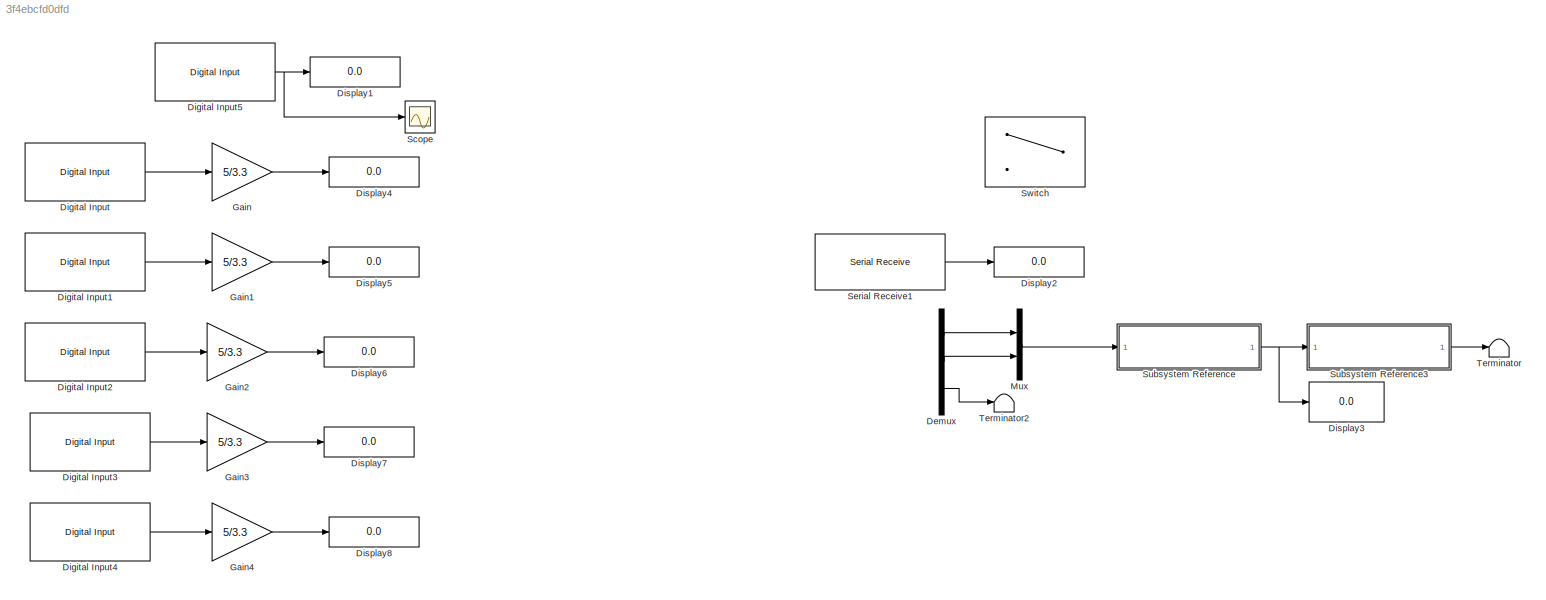
MODEL slx_3f4ebcfd0dfd
KIND model
CONFIG AbsTol = auto
CONFIG EnableMultiTasking = on
CONFIG FixedStep = auto
CONFIG MaxStep = auto
CONFIG MinStep = auto
CONFIG RelTol = 1e-3
CONFIG SampleTimeConstraint = Unconstrained
CONFIG SolverName = FixedStepAuto
CONFIG StartTime = 0.0
CONFIG StopTime = inf
BLOCK [Demux] Demux
  Commented = on
  Outputs = 3
BLOCK [Reference] Digital Input  REF=arduinolib/Digital Input
  Commented = on
  SourceBlock = arduinolib/Digital Input
  SourceType = Arduino Digital Input
BLOCK [Reference] Digital Input1  REF=arduinolib/Digital Input
  Commented = on
  SourceBlock = arduinolib/Digital Input
  SourceType = Arduino Digital Input
BLOCK [Reference] Digital Input2  REF=arduinolib/Digital Input
  Commented = on
  SourceBlock = arduinolib/Digital Input
  SourceType = Arduino Digital Input
BLOCK [Reference] Digital Input3  REF=arduinolib/Digital Input
  Commented = on
  SourceBlock = arduinolib/Digital Input
  SourceType = Arduino Digital Input
BLOCK [Reference] Digital Input4  REF=arduinolib/Digital Input
  Commented = on
  SourceBlock = arduinolib/Digital Input
  SourceType = Arduino Digital Input
BLOCK [Reference] Digital Input5  REF=arduinolib/Digital Input
  Commented = on
  SourceBlock = arduinolib/Digital Input
  SourceType = Arduino Digital Input
BLOCK [Display] Display1
  Commented = on
  Decimation = 1
BLOCK [Display] Display2
  Commented = on
  Decimation = 1
BLOCK [Display] Display3
  Commented = on
  Decimation = 1
BLOCK [Display] Display4
  Commented = on
  Decimation = 1
BLOCK [Display] Display5
  Commented = on
  Decimation = 1
BLOCK [Display] Display6
  Commented = on
  Decimation = 1
BLOCK [Display] Display7
  Commented = on
  Decimation = 1
BLOCK [Display] Display8
  Commented = on
  Decimation = 1
BLOCK [Gain] Gain
  Commented = on
  Gain = 5/3.3
BLOCK [Gain] Gain1
  Commented = on
  Gain = 5/3.3
BLOCK [Gain] Gain2
  Commented = on
  Gain = 5/3.3
BLOCK [Gain] Gain3
  Commented = on
  Gain = 5/3.3
BLOCK [Gain] Gain4
  Commented = on
  Gain = 5/3.3
BLOCK [Mux] Mux
  Commented = on
  DisplayOption = bar
  Inputs = 2
BLOCK [Scope] Scope
  Commented = on
  Floating = off
  NumInputPorts = 1
  ScopeSpecificationString = Simulink.scopes.TimeScopeBlockCfg('CurrentConfiguration', extmgr.ConfigurationSet(extmgr.Configuration('Core','General UI',true),extmgr.Configuration('Core','Source UI',true),extmgr.Configuration('Sources','WiredSimulink',true),extmgr.Configuration('Visuals','Time Domain',true,'SerializedDisplays',{struct('MinYLimReal','-0.125','MaxYLimReal','1.125','YLabelReal','','MinYLimMag','0.00000','MaxYLimM...<+1649ch>
BLOCK [Reference] Serial Receive1  REF=instrumentseriallib/Serial Receive
  Commented = on
  LibrarySourceBlock = instrumentlib/Serial Receive
  NameLocation = top
  Priority = 1
  SourceBlock = instrumentseriallib/Serial Receive
  SourceType = system.SerialReceive
BLOCK [SubSystem] Subsystem Reference
  Commented = on
  ReferencedSubsystem = MCI
BLOCK [SubSystem] Subsystem Reference3
  Commented = on
  ReferencedSubsystem = PieroCV
BLOCK [Switch] Switch
  Commented = on
  Criteria = u2 > Threshold
  InputSameDT = off
  SaturateOnIntegerOverflow = off
  Threshold = 256/2-1
BLOCK [Terminator] Terminator
  Commented = on
BLOCK [Terminator] Terminator2
  Commented = on
LINE Demux:1 -> Mux:1
LINE Demux:2 -> Mux:2
LINE Demux:3 -> Terminator2:1
LINE Digital Input1:1 -> Gain1:1
LINE Digital Input2:1 -> Gain2:1
LINE Digital Input3:1 -> Gain3:1
LINE Digital Input4:1 -> Gain4:1
NET Digital Input5:1 -> Display1:1, Scope:1
LINE Digital Input:1 -> Gain:1
LINE Gain1:1 -> Display5:1
LINE Gain2:1 -> Display6:1
LINE Gain3:1 -> Display7:1
LINE Gain4:1 -> Display8:1
LINE Gain:1 -> Display4:1
LINE Mux:1 -> Subsystem Reference:1
LINE Serial Receive1:1 -> Display2:1
LINE Subsystem Reference3:1 -> Terminator:1
NET Subsystem Reference:1 -> Display3:1, Subsystem Reference3:1
note: NET lines group one-source signal fan-out (src -> all destinations, sorted); 1:1 wires keep LINE
